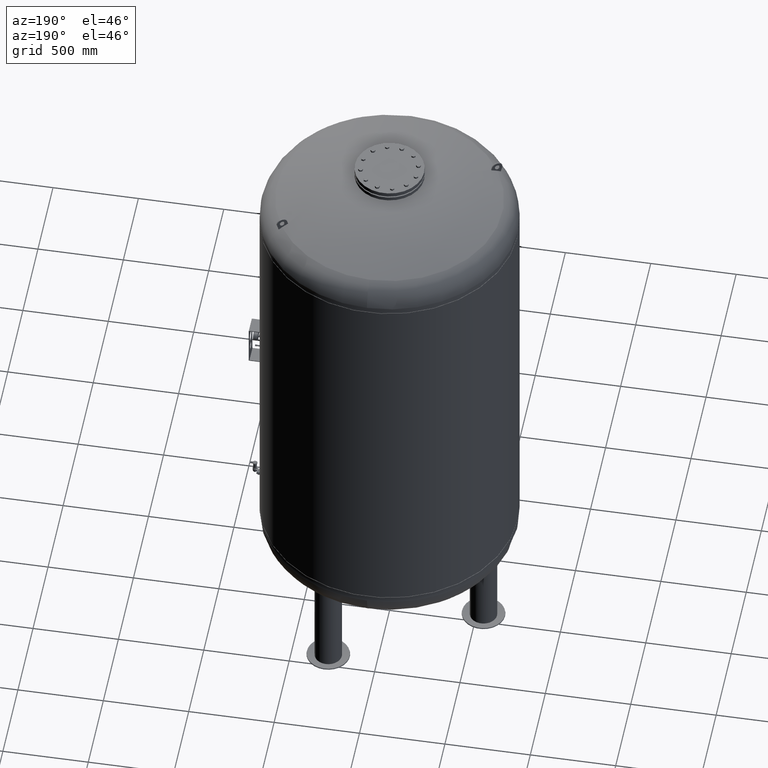
[diagram: clean part render]
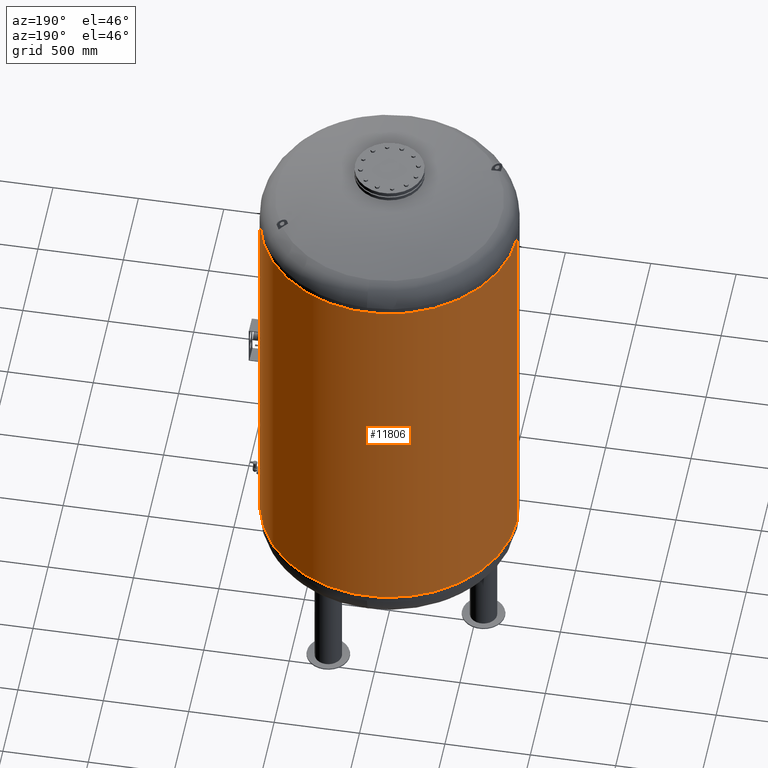
[diagram: same view with one face highlighted and labeled with its STEP entity id]
A machine part, auxiliary view. The second image highlights one B-rep face of the part: STEP entity #11806.
In plain terms, the highlighted cylindrical surface (partial cylindrical patch) has radius 750 mm, axis along (0, 0, 1).
Its self-contained STEP definition (entity closure, byte-faithful):
#11686=CARTESIAN_POINT('',(750.000000000001360,0.0,3177.0));
#11687=VERTEX_POINT('',#11686);
#11688=CARTESIAN_POINT('',(749.999999999999890,0.0,822.999999999999770));
#11689=VERTEX_POINT('',#11688);
#11690=CARTESIAN_POINT('',(750.000000000001360,0.0,3177.0));
#11691=DIRECTION('',(0.0,0.0,-1.0));
#11692=VECTOR('',#11691,2354.0);
#11693=LINE('',#11690,#11692);
#11694=EDGE_CURVE('',#11687,#11689,#11693,.T.);
#11696=CARTESIAN_POINT('',(-750.000000000000910,-9.184548E-014,3177.0));
#11697=VERTEX_POINT('',#11696);
#11705=CARTESIAN_POINT('',(-749.999999999999770,-9.184548E-014,822.999999999999660));
#11706=VERTEX_POINT('',#11705);
#11707=CARTESIAN_POINT('',(-750.000000000000910,-9.184548E-014,3177.0));
#11708=DIRECTION('',(0.0,0.0,-1.0));
#11709=VECTOR('',#11708,2354.000000000000500);
#11710=LINE('',#11707,#11709);
#11711=EDGE_CURVE('',#11697,#11706,#11710,.T.);
#11779=CARTESIAN_POINT('',(-1.664554E-014,0.0,822.999999999999550));
#11780=DIRECTION('',(0.0,0.0,1.0));
#11781=DIRECTION('',(1.0,0.0,0.0));
#11782=AXIS2_PLACEMENT_3D('',#11779,#11780,#11781);
#11783=CIRCLE('',#11782,749.999999999999890);
#11784=EDGE_CURVE('',#11689,#11706,#11783,.T.);
#11789=CARTESIAN_POINT('',(8.322769E-015,0.0,2588.500000000000000));
#11790=DIRECTION('',(1.414234E-017,0.0,1.0));
#11791=DIRECTION('',(1.0,0.0,0.0));
#11792=AXIS2_PLACEMENT_3D('',#11789,#11790,#11791);
#11793=CYLINDRICAL_SURFACE('',#11792,750.000000000000910);
#11794=ORIENTED_EDGE('',*,*,#11694,.T.);
#11795=ORIENTED_EDGE('',*,*,#11784,.T.);
#11796=ORIENTED_EDGE('',*,*,#11711,.F.);
#11797=CARTESIAN_POINT('',(1.664554E-014,0.0,3177.0));
#11798=DIRECTION('',(0.0,0.0,1.0));
#11799=DIRECTION('',(1.0,0.0,0.0));
#11800=AXIS2_PLACEMENT_3D('',#11797,#11798,#11799);
#11801=CIRCLE('',#11800,750.000000000001360);
#11802=EDGE_CURVE('',#11687,#11697,#11801,.T.);
#11803=ORIENTED_EDGE('',*,*,#11802,.F.);
#11804=EDGE_LOOP('',(#11794,#11795,#11796,#11803));
#11805=FACE_OUTER_BOUND('',#11804,.T.);
#11806=ADVANCED_FACE('',(#11805),#11793,.T.);